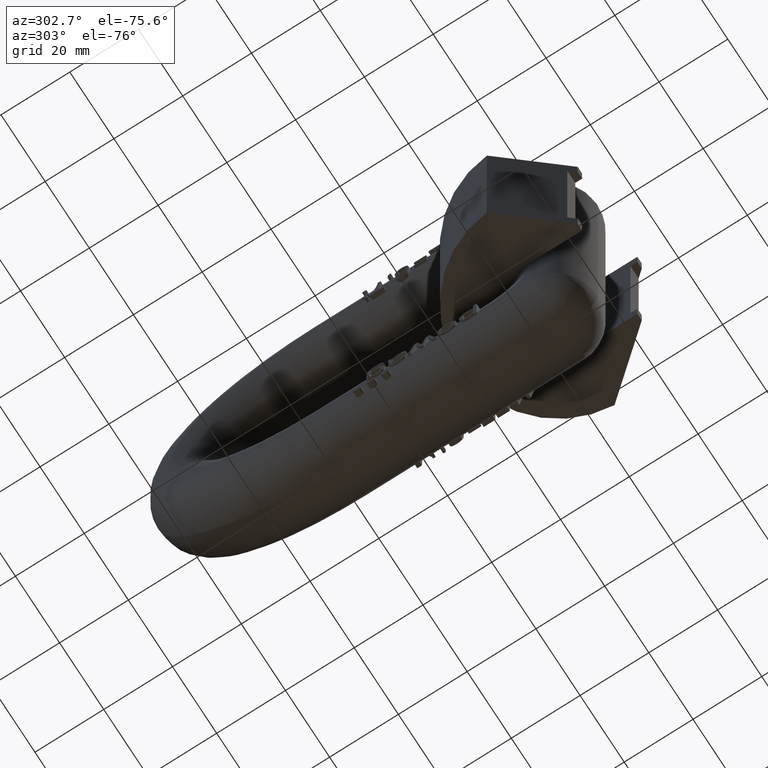
[diagram: clean part render]
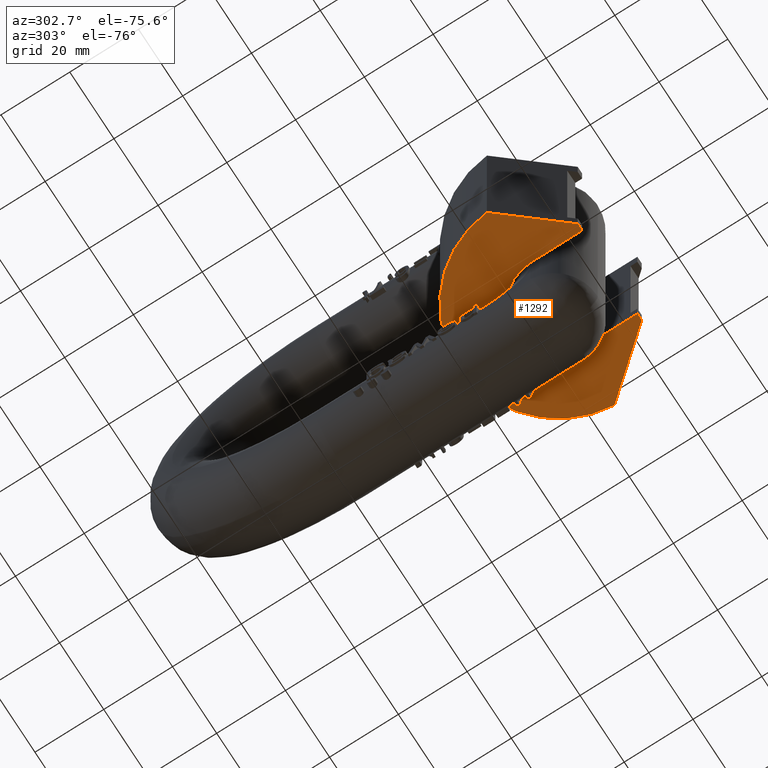
[diagram: same view with one face highlighted and labeled with its STEP entity id]
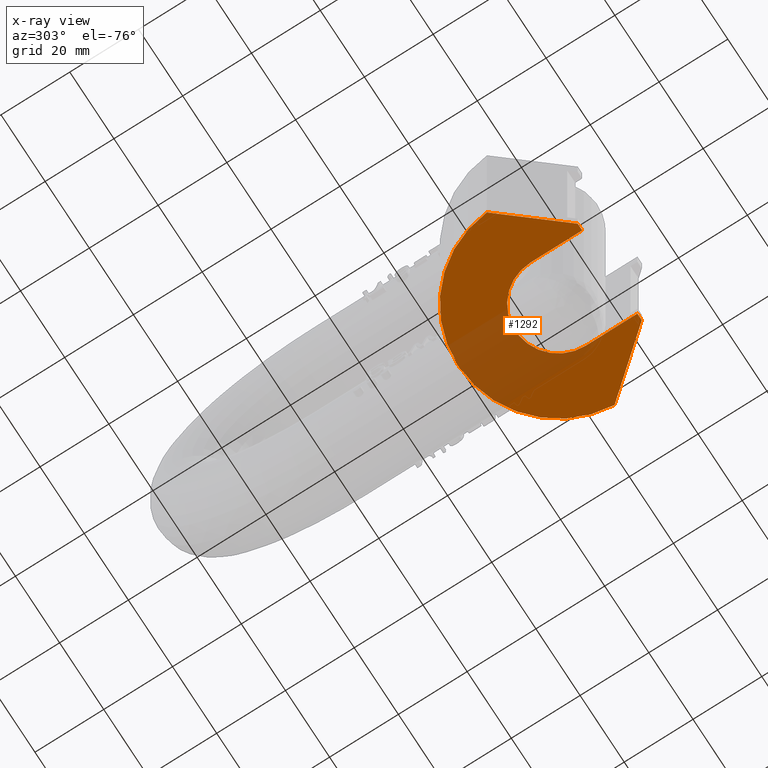
[diagram: x-ray of the same camera — body ghosted, the highlighted face saturated]
A machine part, auxiliary view. The second image highlights one B-rep face of the part: STEP entity #1292.
The next image is the same camera in x-ray: the body ghosted, the highlighted face saturated — about 29% of this face is hidden behind the body in this view.
In plain terms, the highlighted planar face has unit normal (0, 0, -1).
Its self-contained STEP definition (entity closure, byte-faithful):
#1073=PLANE('',#8681);
#1292=ADVANCED_FACE('',(#1810),#1073,.T.);
#1810=FACE_OUTER_BOUND('',#2248,.T.);
#2248=EDGE_LOOP('',(#2852,#2853,#2854,#2855,#2856,#2857,#2858,#2859));
#2735=CIRCLE('',#8676,29.);
#2737=CIRCLE('',#8680,12.5);
#2852=ORIENTED_EDGE('',*,*,#6207,.F.);
#2853=ORIENTED_EDGE('',*,*,#6208,.T.);
#2854=ORIENTED_EDGE('',*,*,#6199,.F.);
#2855=ORIENTED_EDGE('',*,*,#6209,.T.);
#2856=ORIENTED_EDGE('',*,*,#6210,.F.);
#2857=ORIENTED_EDGE('',*,*,#6211,.F.);
#2858=ORIENTED_EDGE('',*,*,#6212,.F.);
#2859=ORIENTED_EDGE('',*,*,#6213,.F.);
#5365=VERTEX_POINT('',#10774);
#5367=VERTEX_POINT('',#10778);
#5374=VERTEX_POINT('',#10796);
#5375=VERTEX_POINT('',#10797);
#5376=VERTEX_POINT('',#10800);
#5377=VERTEX_POINT('',#10802);
#5378=VERTEX_POINT('',#10804);
#5379=VERTEX_POINT('',#10806);
#6199=EDGE_CURVE('',#5367,#5365,#2735,.T.);
#6207=EDGE_CURVE('',#5374,#5375,#7466,.T.);
#6208=EDGE_CURVE('',#5374,#5365,#7467,.T.);
#6209=EDGE_CURVE('',#5367,#5376,#7468,.T.);
#6210=EDGE_CURVE('',#5377,#5376,#7469,.T.);
#6211=EDGE_CURVE('',#5378,#5377,#7470,.T.);
#6212=EDGE_CURVE('',#5379,#5378,#2737,.T.);
#6213=EDGE_CURVE('',#5375,#5379,#7471,.T.);
#7466=LINE('',#10795,#7992);
#7467=LINE('',#10798,#7993);
#7468=LINE('',#10799,#7994);
#7469=LINE('',#10801,#7995);
#7470=LINE('',#10803,#7996);
#7471=LINE('',#10807,#7997);
#7992=VECTOR('',#9163,1.);
#7993=VECTOR('',#9164,1.);
#7994=VECTOR('',#9165,1.);
#7995=VECTOR('',#9166,1.);
#7996=VECTOR('',#9167,1.);
#7997=VECTOR('',#9170,1.);
#8676=AXIS2_PLACEMENT_3D('',#10779,#9149,#9150);
#8680=AXIS2_PLACEMENT_3D('',#10805,#9168,#9169);
#8681=AXIS2_PLACEMENT_3D('',#10808,#9171,#9172);
#9149=DIRECTION('',(0.,0.,1.));
#9150=DIRECTION('',(1.,0.,0.));
#9163=DIRECTION('',(1.,-2.39048759157882E-32,0.));
#9164=DIRECTION('',(-0.642787609686539,0.766044443118978,0.));
#9165=DIRECTION('',(-0.642787609686539,-0.766044443118978,0.));
#9166=DIRECTION('',(1.,2.5398930660525E-32,0.));
#9167=DIRECTION('',(2.31296463463574E-16,-1.,0.));
#9168=DIRECTION('',(0.,0.,-1.));
#9169=DIRECTION('',(1.,1.38777878078145E-16,0.));
#9170=DIRECTION('',(2.31296463463574E-16,1.,0.));
#9171=DIRECTION('',(0.,0.,-1.));
#9172=DIRECTION('',(-1.,0.,0.));
#10774=CARTESIAN_POINT('',(-28.9177633537387,17.1824212739912,-28.));
#10778=CARTESIAN_POINT('',(28.9177633537387,17.1824212739912,-28.));
#10779=CARTESIAN_POINT('',(0.,15.,-28.));
#10795=CARTESIAN_POINT('',(-29.,0.,-28.));
#10796=CARTESIAN_POINT('',(-14.5,0.,-28.));
#10797=CARTESIAN_POINT('',(-12.5,-3.94430452610506E-31,-28.));
#10798=CARTESIAN_POINT('',(-15.8950074356768,1.66250512316347,-28.));
#10799=CARTESIAN_POINT('',(15.8950074356768,1.66250512316347,-28.));
#10800=CARTESIAN_POINT('',(14.5,0.,-28.));
#10801=CARTESIAN_POINT('',(12.5,-4.19082355898663E-31,-28.));
#10802=CARTESIAN_POINT('',(12.5,0.,-28.));
#10803=CARTESIAN_POINT('',(12.5,15.,-28.));
#10804=CARTESIAN_POINT('',(12.5,15.,-28.));
#10805=CARTESIAN_POINT('',(0.,15.,-28.));
#10806=CARTESIAN_POINT('',(-12.5,15.,-28.));
#10807=CARTESIAN_POINT('',(-12.5,0.,-28.));
#10808=CARTESIAN_POINT('',(0.,15.,-28.));